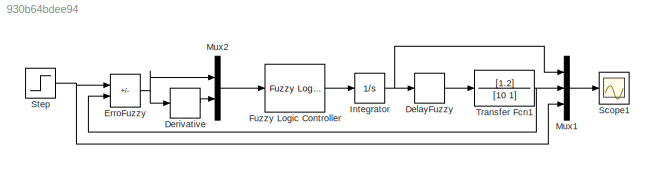
MODEL slx_930b64bdee94
KIND model
CONFIG AbsTol = auto
CONFIG EnableMultiTasking = on
CONFIG FixedStep = auto
CONFIG MaxStep = auto
CONFIG MinStep = auto
CONFIG RelTol = 1e-3
CONFIG SampleTimeConstraint = Unconstrained
CONFIG Solver = ode23tb
CONFIG SolverName = ode23tb
CONFIG StartTime = 0.0
CONFIG StopTime = 100
BLOCK [TransportDelay] DelayFuzzy
  DelayTime = 2
  Ports = [1, 1]
BLOCK [Derivative] Derivative
BLOCK [Sum] ErroFuzzy
  IconShape = rectangular
  Inputs = +-
  Ports = [2, 1]
BLOCK [Reference] Fuzzy Logic Controller  REF=fuzblock/Fuzzy Logic   (lib defined in mdl_858b3b3e7478)
Controller
  Ports = [1, 1]
  SourceBlock = fuzblock/Fuzzy Logic \nController
  SourceProductBaseCode = FL
  SourceType = Fuzzy Inference System
BLOCK [Integrator] Integrator
  Ports = [1, 1]
BLOCK [Mux] Mux1
  DisplayOption = bar
  Inputs = 3
  Ports = [3, 1]
BLOCK [Mux] Mux2
  DisplayOption = bar
  Inputs = 2
  Ports = [2, 1]
BLOCK [Scope] Scope1
  Floating = off
  NumInputPorts = 1
  Ports = [1]
  ScopeSpecificationString = Simulink.scopes.TimeScopeBlockCfg('CurrentConfiguration', extmgr.ConfigurationSet(extmgr.Configuration('Core','General UI',true),extmgr.Configuration('Core','Source UI',true),extmgr.Configuration('Sources','WiredSimulink',true,'DataLoggingVariableName','ScopeData1','DataLoggingSaveFormat','StructureWithTime','DataLoggingLimitDataPoints',true,'DataLoggingDecimation','1','DataLoggingDecimateData',tr...<+1733ch>
BLOCK [Step] Step
  SampleTime = 0
BLOCK [TransferFcn] Transfer Fcn1
  Denominator = [10 1]
  Numerator = [1.2]
LINE DelayFuzzy:1 -> Transfer Fcn1:1
LINE Derivative:1 -> Mux2:2
NET ErroFuzzy:1 -> Derivative:1, Mux2:1
LINE Fuzzy Logic Controller:1 -> Integrator:1
NET Integrator:1 -> DelayFuzzy:1, Mux1:1
LINE Mux1:1 -> Scope1:1
LINE Mux2:1 -> Fuzzy Logic Controller:1
NET Step:1 -> ErroFuzzy:1, Mux1:3
NET Transfer Fcn1:1 -> ErroFuzzy:2, Mux1:2
note: NET lines group one-source signal fan-out (src -> all destinations, sorted); 1:1 wires keep LINE
